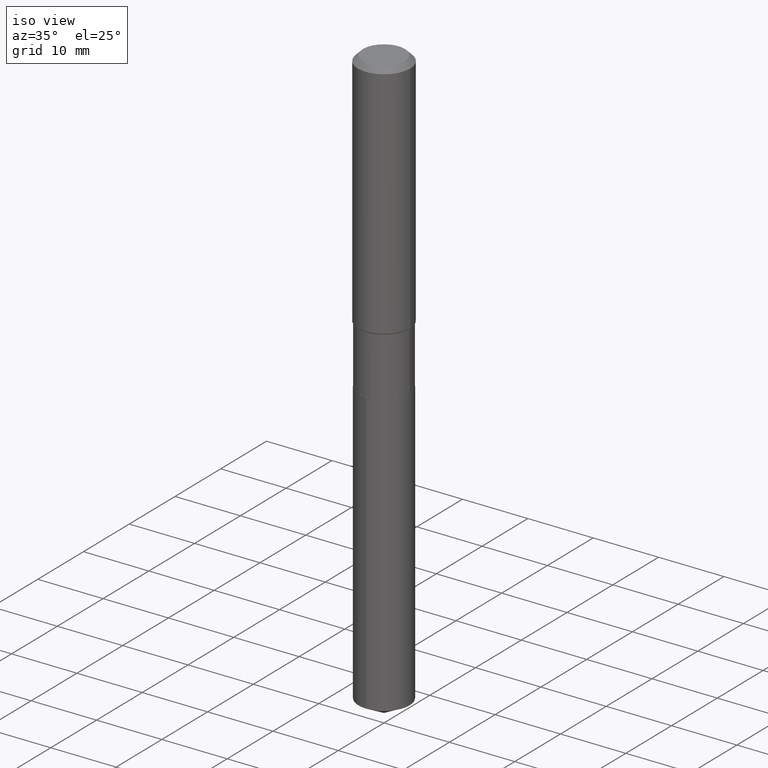
[diagram: clean part render]
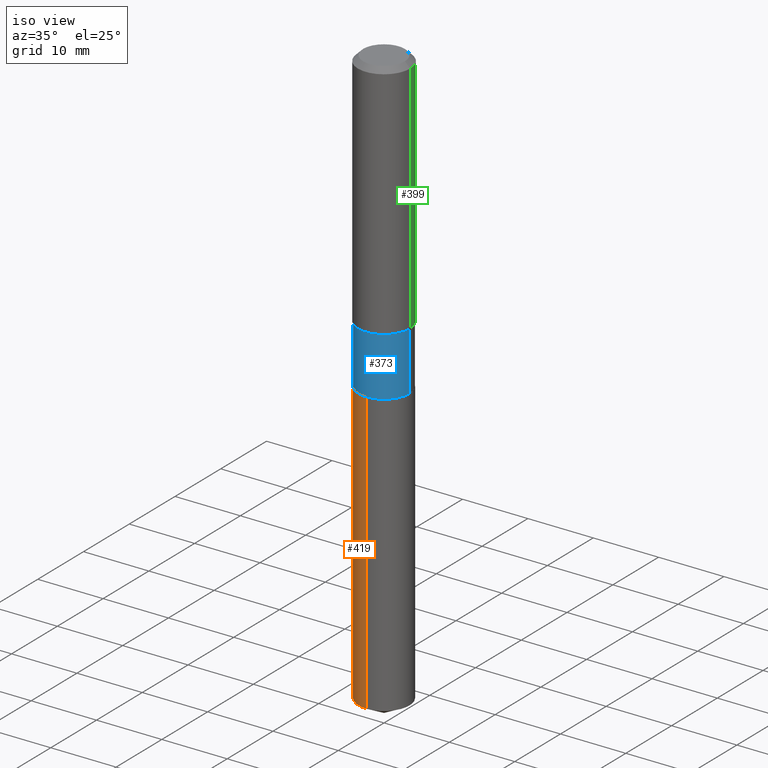
[diagram: same view with three faces highlighted in distinct colors, each labeled with its STEP entity id]
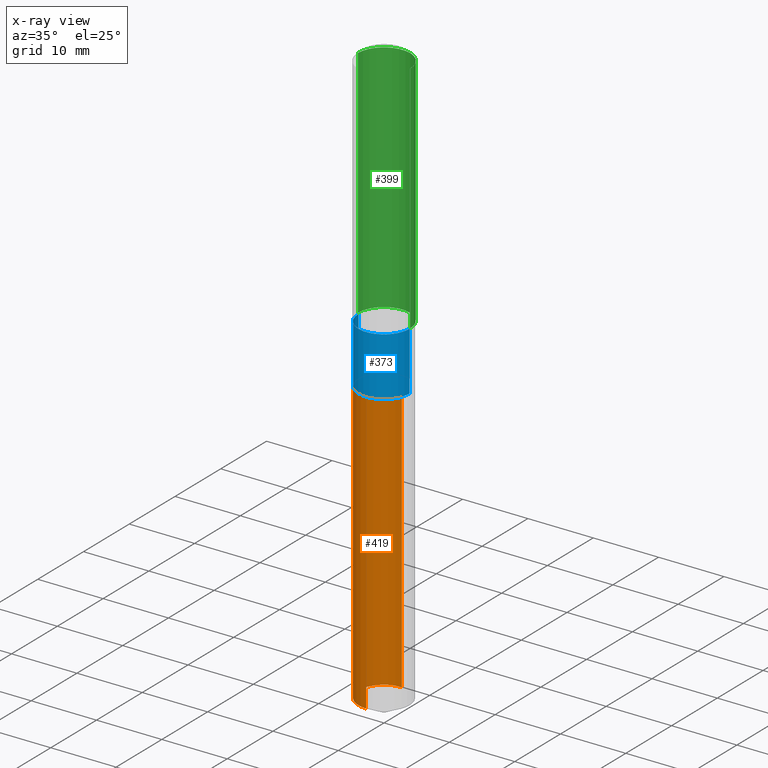
[diagram: x-ray of the same camera — body ghosted, the three highlighted faces saturated]
A machine part, iso view with three faces highlighted in distinct colors.
The next image is the same camera in x-ray (body ghosted, the three faces saturated) — at least one of them is partly hidden behind the body in this view.
Their STEP definitions:

[orange] entity #419 — the highlighted cylindrical surface (edge-blend (fillet) strip) has radius 3.9002 mm, axis along (-0, 0, 1).
#10 = ORIENTED_EDGE ( 'NONE', *, *, #160, .F. ) ;
#32 = DIRECTION ( 'NONE',  ( -2.445434564979098040E-29, 3.491530374199081050E-15, 1.000000000000000000 ) ) ;
#40 = EDGE_CURVE ( 'NONE', #360, #314, #222, .T. ) ;
#44 = DIRECTION ( 'NONE',  ( -2.445434564979098040E-29, 3.491530374199081050E-15, 1.000000000000000000 ) ) ;
#79 = DIRECTION ( 'NONE',  ( -2.445434564979098040E-29, 3.491530374199081444E-15, 1.000000000000000000 ) ) ;
#96 = CARTESIAN_POINT ( 'NONE',  ( 1.091038370759719765E-15, 0.1535499999999937193, -1.803200000000000580 ) ) ;
#117 = ORIENTED_EDGE ( 'NONE', *, *, #141, .F. ) ;
#121 = CARTESIAN_POINT ( 'NONE',  ( -1.072233919158681970E-15, -0.1535500000000062926, -1.803199999999999470 ) ) ;
#124 = DIRECTION ( 'NONE',  ( -2.445434564979098040E-29, 3.491530374199081444E-15, 1.000000000000000000 ) ) ;
#137 = CARTESIAN_POINT ( 'NONE',  ( 1.091038370759719173E-15, 0.1535499999999877796, -3.501056016768380630 ) ) ;
#138 = CIRCLE ( 'NONE', #388, 0.1535499999999999921 ) ;
#141 = EDGE_CURVE ( 'NONE', #275, #416, #138, .T. ) ;
#151 = LINE ( 'NONE', #121, #460 ) ;
#156 = LINE ( 'NONE', #196, #298 ) ;
#160 = EDGE_CURVE ( 'NONE', #360, #275, #156, .T. ) ;
#166 = ORIENTED_EDGE ( 'NONE', *, *, #201, .T. ) ;
#196 = CARTESIAN_POINT ( 'NONE',  ( 1.091038370759677758E-15, 0.1535499999999936915, -1.803200000000000580 ) ) ;
#201 = EDGE_CURVE ( 'NONE', #314, #416, #151, .T. ) ;
#220 = EDGE_LOOP ( 'NONE', ( #10, #339, #166, #117 ) ) ;
#222 = CIRCLE ( 'NONE', #365, 0.1535500000000000198 ) ;
#256 = CARTESIAN_POINT ( 'NONE',  ( 4.409669351313038346E-29, -6.295839150201959750E-15, -1.803200000000000136 ) ) ;
#275 = VERTEX_POINT ( 'NONE', #96 ) ;
#288 = CARTESIAN_POINT ( 'NONE',  ( -1.072233919158640357E-15, -0.1535500000000122045, -3.501056016768379742 ) ) ;
#298 = VECTOR ( 'NONE', #79, 39.37007874015748143 ) ;
#314 = VERTEX_POINT ( 'NONE', #288 ) ;
#339 = ORIENTED_EDGE ( 'NONE', *, *, #40, .T. ) ;
#355 = FACE_OUTER_BOUND ( 'NONE', #220, .T. ) ;
#360 = VERTEX_POINT ( 'NONE', #137 ) ;
#365 = AXIS2_PLACEMENT_3D ( 'NONE', #406, #32, #402 ) ;
#375 = CARTESIAN_POINT ( 'NONE',  ( 4.409669351313038346E-29, -6.295839150201959750E-15, -1.803200000000000136 ) ) ;
#385 = DIRECTION ( 'NONE',  ( -6.982962677686266711E-15, -1.000000000000000000, 3.558252026915354491E-15 ) ) ;
#387 = AXIS2_PLACEMENT_3D ( 'NONE', #256, #451, #473 ) ;
#388 = AXIS2_PLACEMENT_3D ( 'NONE', #375, #44, #385 ) ;
#402 = DIRECTION ( 'NONE',  ( -6.982962677686265133E-15, -1.000000000000000000, 3.558252026915353702E-15 ) ) ;
#406 = CARTESIAN_POINT ( 'NONE',  ( 8.561665141076166263E-29, -1.222395500376542406E-14, -3.501056016768380186 ) ) ;
#416 = VERTEX_POINT ( 'NONE', #425 ) ;
#419 = ADVANCED_FACE ( 'NONE', ( #355 ), #479, .T. ) ;
#425 = CARTESIAN_POINT ( 'NONE',  ( -1.072233919158681970E-15, -0.1535500000000062926, -1.803199999999999470 ) ) ;
#451 = DIRECTION ( 'NONE',  ( -2.445434564979098040E-29, 3.491530374199081050E-15, 1.000000000000000000 ) ) ;
#460 = VECTOR ( 'NONE', #124, 39.37007874015748143 ) ;
#473 = DIRECTION ( 'NONE',  ( -6.982962677686266711E-15, -1.000000000000000000, 3.558252026915354491E-15 ) ) ;
#479 = CYLINDRICAL_SURFACE ( 'NONE', #387, 0.1535499999999999921 ) ;

[blue] entity #373 — the highlighted cylindrical surface (edge-blend (fillet) strip) has radius 3.9002 mm, axis along (-0, 0, 1).
#1 = ORIENTED_EDGE ( 'NONE', *, *, #433, .F. ) ;
#11 = LINE ( 'NONE', #153, #125 ) ;
#14 = CARTESIAN_POINT ( 'NONE',  ( -0.1535499999999999643, 1.091038370759633582E-15, -7.553024831086406471E-30 ) ) ;
#15 = CARTESIAN_POINT ( 'NONE',  ( 3.545929768968448850E-29, -5.062647941322561509E-15, -1.450000000000000178 ) ) ;
#48 = CARTESIAN_POINT ( 'NONE',  ( 4.408446616909946105E-29, -6.294093409532539036E-15, -1.802700000000000191 ) ) ;
#75 = EDGE_CURVE ( 'NONE', #228, #471, #92, .T. ) ;
#82 = AXIS2_PLACEMENT_3D ( 'NONE', #48, #452, #119 ) ;
#85 = DIRECTION ( 'NONE',  ( -2.445468806185136597E-29, 3.491481338843145583E-15, 1.000000000000000000 ) ) ;
#89 = LINE ( 'NONE', #14, #325 ) ;
#92 = CIRCLE ( 'NONE', #428, 0.1535499999999999365 ) ;
#118 = CARTESIAN_POINT ( 'NONE',  ( 0.000000000000000000, 0.000000000000000000, 0.000000000000000000 ) ) ;
#119 = DIRECTION ( 'NONE',  ( 1.000000000000000000, -6.982962677686269077E-15, 0.000000000000000000 ) ) ;
#125 = VECTOR ( 'NONE', #379, 39.37007874015748143 ) ;
#145 = EDGE_CURVE ( 'NONE', #477, #471, #11, .T. ) ;
#150 = FACE_OUTER_BOUND ( 'NONE', #269, .T. ) ;
#153 = CARTESIAN_POINT ( 'NONE',  ( 0.1535499999999999643, -1.072233919158725949E-15, 7.487369439234657779E-30 ) ) ;
#157 = CARTESIAN_POINT ( 'NONE',  ( 0.1535499999999999365, -6.134881860481286866E-15, -1.450000000000000178 ) ) ;
#190 = CYLINDRICAL_SURFACE ( 'NONE', #363, 0.1535499999999999643 ) ;
#199 = CARTESIAN_POINT ( 'NONE',  ( -0.1535499999999999365, -4.587332304667917085E-15, -1.450000000000000178 ) ) ;
#212 = VERTEX_POINT ( 'NONE', #271 ) ;
#218 = EDGE_CURVE ( 'NONE', #212, #477, #306, .T. ) ;
#228 = VERTEX_POINT ( 'NONE', #199 ) ;
#247 = CARTESIAN_POINT ( 'NONE',  ( 0.1535499999999999921, -7.366327328691265182E-15, -1.802700000000000191 ) ) ;
#253 = ORIENTED_EDGE ( 'NONE', *, *, #75, .F. ) ;
#269 = EDGE_LOOP ( 'NONE', ( #1, #311, #468, #253 ) ) ;
#271 = CARTESIAN_POINT ( 'NONE',  ( -0.1535499999999999921, -4.587332304667917085E-15, -1.802700000000000191 ) ) ;
#306 = CIRCLE ( 'NONE', #82, 0.1535499999999999921 ) ;
#311 = ORIENTED_EDGE ( 'NONE', *, *, #218, .T. ) ;
#325 = VECTOR ( 'NONE', #426, 39.37007874015748143 ) ;
#363 = AXIS2_PLACEMENT_3D ( 'NONE', #118, #391, #446 ) ;
#373 = ADVANCED_FACE ( 'NONE', ( #150 ), #190, .T. ) ;
#379 = DIRECTION ( 'NONE',  ( -2.445468806185136877E-29, 3.491481338843145188E-15, 1.000000000000000000 ) ) ;
#391 = DIRECTION ( 'NONE',  ( -2.445468806185136597E-29, 3.491481338843145583E-15, 1.000000000000000000 ) ) ;
#417 = DIRECTION ( 'NONE',  ( 1.000000000000000000, -6.982962677686265133E-15, 0.000000000000000000 ) ) ;
#426 = DIRECTION ( 'NONE',  ( -2.445468806185136877E-29, 3.491481338843145188E-15, 1.000000000000000000 ) ) ;
#428 = AXIS2_PLACEMENT_3D ( 'NONE', #15, #85, #417 ) ;
#433 = EDGE_CURVE ( 'NONE', #212, #228, #89, .T. ) ;
#446 = DIRECTION ( 'NONE',  ( 1.000000000000000000, -6.982962677686266711E-15, 4.876176775795935793E-29 ) ) ;
#452 = DIRECTION ( 'NONE',  ( -2.445468806185136597E-29, 3.491481338843145583E-15, 1.000000000000000000 ) ) ;
#468 = ORIENTED_EDGE ( 'NONE', *, *, #145, .T. ) ;
#471 = VERTEX_POINT ( 'NONE', #157 ) ;
#477 = VERTEX_POINT ( 'NONE', #247 ) ;

[green] entity #399 — the highlighted cylindrical surface (edge-blend (fillet) strip) has radius 4.0005 mm, axis along (-0, 0, 1).
#16 = VERTEX_POINT ( 'NONE', #144 ) ;
#26 = CARTESIAN_POINT ( 'NONE',  ( -0.1575000000000000844, 1.119104808822158392E-15, -7.747322767151481189E-30 ) ) ;
#29 = AXIS2_PLACEMENT_3D ( 'NONE', #455, #315, #474 ) ;
#42 = CYLINDRICAL_SURFACE ( 'NONE', #29, 0.1575000000000000844 ) ;
#56 = VERTEX_POINT ( 'NONE', #291 ) ;
#59 = CARTESIAN_POINT ( 'NONE',  ( 0.1575000000000000844, -1.099816621735587677E-15, 7.679978421878603638E-30 ) ) ;
#63 = DIRECTION ( 'NONE',  ( -2.445468806185136877E-29, 3.491481338843145188E-15, 1.000000000000000000 ) ) ;
#88 = ORIENTED_EDGE ( 'NONE', *, *, #130, .F. ) ;
#101 = LINE ( 'NONE', #26, #400 ) ;
#113 = ORIENTED_EDGE ( 'NONE', *, *, #249, .F. ) ;
#115 = AXIS2_PLACEMENT_3D ( 'NONE', #308, #202, #276 ) ;
#130 = EDGE_CURVE ( 'NONE', #324, #16, #334, .T. ) ;
#144 = CARTESIAN_POINT ( 'NONE',  ( -0.1575000000000000011, -1.460314317281686560E-15, -0.03150000000000019451 ) ) ;
#155 = EDGE_CURVE ( 'NONE', #56, #272, #316, .T. ) ;
#164 = CARTESIAN_POINT ( 'NONE',  ( 0.1575000000000000011, -1.209798283909146741E-15, -0.03150000000000019451 ) ) ;
#176 = EDGE_LOOP ( 'NONE', ( #320, #331, #88, #113 ) ) ;
#178 = VECTOR ( 'NONE', #398, 39.37007874015748143 ) ;
#192 = DIRECTION ( 'NONE',  ( -2.445468806185136597E-29, 3.491481338843145583E-15, 1.000000000000000000 ) ) ;
#202 = DIRECTION ( 'NONE',  ( -2.445468806185136597E-29, 3.491481338843145583E-15, 1.000000000000000000 ) ) ;
#238 = CARTESIAN_POINT ( 'NONE',  ( 7.703226739483226971E-31, -1.099816621735597538E-16, -0.03150000000000019451 ) ) ;
#244 = AXIS2_PLACEMENT_3D ( 'NONE', #238, #192, #467 ) ;
#249 = EDGE_CURVE ( 'NONE', #56, #324, #478, .T. ) ;
#272 = VERTEX_POINT ( 'NONE', #427 ) ;
#276 = DIRECTION ( 'NONE',  ( 1.000000000000000000, -6.982962677686267499E-15, 0.000000000000000000 ) ) ;
#291 = CARTESIAN_POINT ( 'NONE',  ( 0.1575000000000001676, -6.148673211769718717E-15, -1.446050000000000058 ) ) ;
#308 = CARTESIAN_POINT ( 'NONE',  ( 3.536270167184016952E-29, -5.048856590034130447E-15, -1.446050000000000058 ) ) ;
#315 = DIRECTION ( 'NONE',  ( -2.445468806185136597E-29, 3.491481338843145583E-15, 1.000000000000000000 ) ) ;
#316 = CIRCLE ( 'NONE', #115, 0.1575000000000001676 ) ;
#320 = ORIENTED_EDGE ( 'NONE', *, *, #155, .T. ) ;
#324 = VERTEX_POINT ( 'NONE', #164 ) ;
#331 = ORIENTED_EDGE ( 'NONE', *, *, #340, .T. ) ;
#334 = CIRCLE ( 'NONE', #244, 0.1575000000000000011 ) ;
#340 = EDGE_CURVE ( 'NONE', #272, #16, #101, .T. ) ;
#398 = DIRECTION ( 'NONE',  ( -2.445468806185136877E-29, 3.491481338843145188E-15, 1.000000000000000000 ) ) ;
#399 = ADVANCED_FACE ( 'NONE', ( #414 ), #42, .T. ) ;
#400 = VECTOR ( 'NONE', #63, 39.37007874015748143 ) ;
#414 = FACE_OUTER_BOUND ( 'NONE', #176, .T. ) ;
#427 = CARTESIAN_POINT ( 'NONE',  ( -0.1575000000000001676, -3.929751781211971266E-15, -1.446050000000000058 ) ) ;
#455 = CARTESIAN_POINT ( 'NONE',  ( 0.000000000000000000, 0.000000000000000000, 0.000000000000000000 ) ) ;
#467 = DIRECTION ( 'NONE',  ( 1.000000000000000000, -6.982962677686265922E-15, 0.000000000000000000 ) ) ;
#474 = DIRECTION ( 'NONE',  ( 1.000000000000000000, -6.982962677686267499E-15, 4.876176775795936353E-29 ) ) ;
#478 = LINE ( 'NONE', #59, #178 ) ;